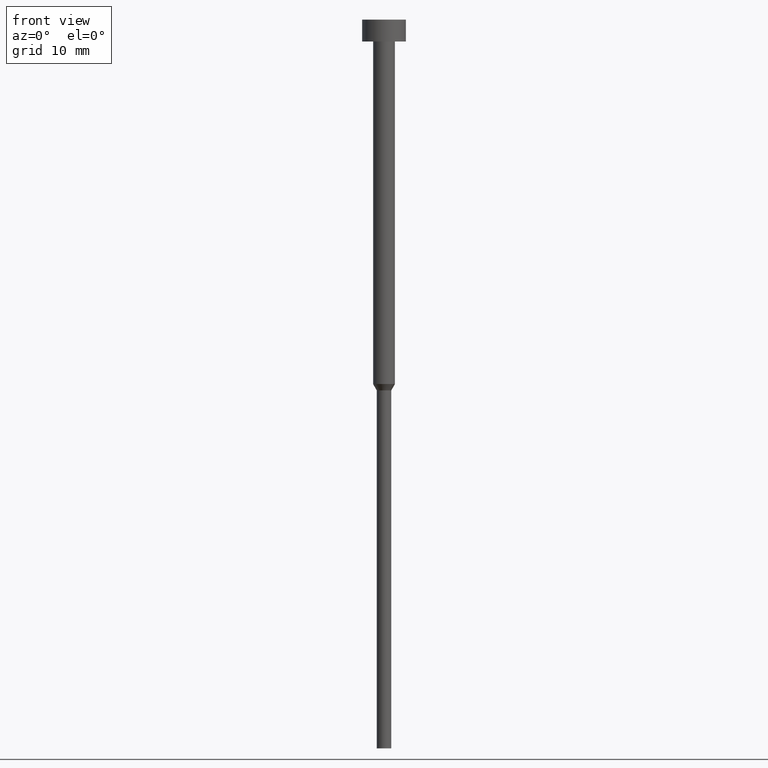
[diagram: clean part render]
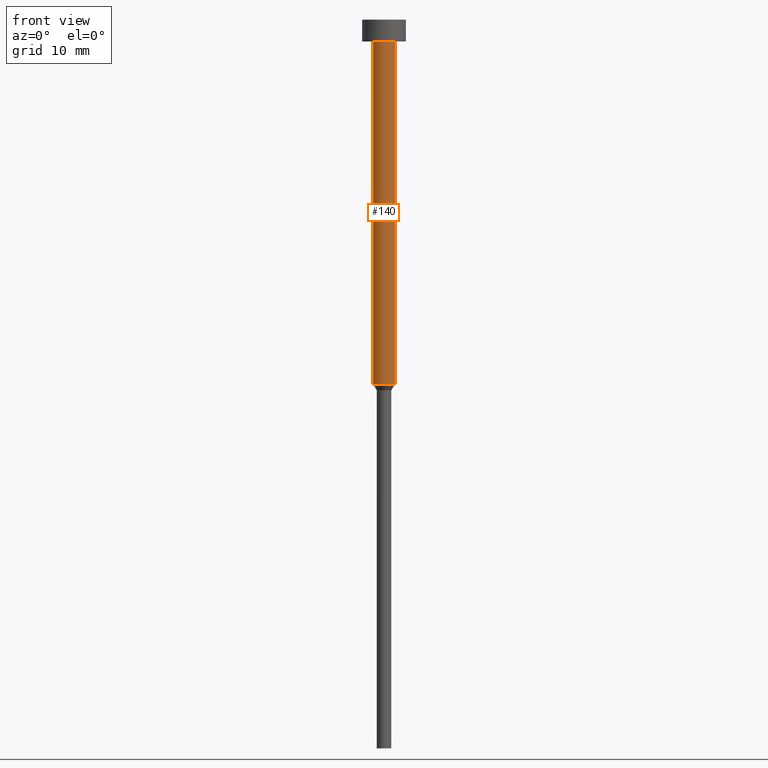
[diagram: same view with one face highlighted and labeled with its STEP entity id]
A machine part, front view. The second image highlights one B-rep face of the part: STEP entity #140.
In plain terms, the highlighted cylindrical surface (edge-blend (fillet) strip) has radius 1.5 mm, axis along (-0, -0, 1).
Its self-contained STEP definition (entity closure, byte-faithful):
#32 = LINE ( 'NONE', #336, #332 ) ;
#34 = VERTEX_POINT ( 'NONE', #176 ) ;
#51 = DIRECTION ( 'NONE',  ( 1.000000000000000000, 0.000000000000000000, 0.000000000000000000 ) ) ;
#53 = EDGE_LOOP ( 'NONE', ( #259, #146, #320, #281 ) ) ;
#79 = DIRECTION ( 'NONE',  ( -0.000000000000000000, -0.000000000000000000, 1.000000000000000000 ) ) ;
#105 = AXIS2_PLACEMENT_3D ( 'NONE', #194, #187, #273 ) ;
#106 = DIRECTION ( 'NONE',  ( -0.000000000000000000, -0.000000000000000000, 1.000000000000000000 ) ) ;
#116 = CIRCLE ( 'NONE', #222, 1.500000000000000000 ) ;
#128 = LINE ( 'NONE', #157, #221 ) ;
#130 = CARTESIAN_POINT ( 'NONE',  ( -1.500000000000000000, 1.836970198721029934E-16, -50.00000000000000000 ) ) ;
#140 = ADVANCED_FACE ( 'NONE', ( #275 ), #244, .T. ) ;
#146 = ORIENTED_EDGE ( 'NONE', *, *, #177, .T. ) ;
#157 = CARTESIAN_POINT ( 'NONE',  ( -1.500000000000000000, 1.836970198721029934E-16, 0.000000000000000000 ) ) ;
#159 = DIRECTION ( 'NONE',  ( 1.000000000000000000, 0.000000000000000000, 0.000000000000000000 ) ) ;
#163 = AXIS2_PLACEMENT_3D ( 'NONE', #321, #79, #51 ) ;
#176 = CARTESIAN_POINT ( 'NONE',  ( -1.500000000000000000, 1.836970198721029934E-16, -3.000000000000000888 ) ) ;
#177 = EDGE_CURVE ( 'NONE', #192, #290, #277, .T. ) ;
#185 = DIRECTION ( 'NONE',  ( -0.000000000000000000, -0.000000000000000000, 1.000000000000000000 ) ) ;
#187 = DIRECTION ( 'NONE',  ( -0.000000000000000000, -0.000000000000000000, 1.000000000000000000 ) ) ;
#192 = VERTEX_POINT ( 'NONE', #130 ) ;
#194 = CARTESIAN_POINT ( 'NONE',  ( 0.000000000000000000, 0.000000000000000000, 0.000000000000000000 ) ) ;
#203 = EDGE_CURVE ( 'NONE', #34, #247, #116, .T. ) ;
#221 = VECTOR ( 'NONE', #106, 1000.000000000000000 ) ;
#222 = AXIS2_PLACEMENT_3D ( 'NONE', #324, #185, #159 ) ;
#244 = CYLINDRICAL_SURFACE ( 'NONE', #105, 1.500000000000000000 ) ;
#246 = CARTESIAN_POINT ( 'NONE',  ( 1.500000000000000000, 0.000000000000000000, -3.000000000000000888 ) ) ;
#247 = VERTEX_POINT ( 'NONE', #246 ) ;
#251 = EDGE_CURVE ( 'NONE', #192, #34, #128, .T. ) ;
#259 = ORIENTED_EDGE ( 'NONE', *, *, #251, .F. ) ;
#273 = DIRECTION ( 'NONE',  ( 1.000000000000000000, 0.000000000000000000, 0.000000000000000000 ) ) ;
#275 = FACE_OUTER_BOUND ( 'NONE', #53, .T. ) ;
#277 = CIRCLE ( 'NONE', #163, 1.500000000000000000 ) ;
#280 = DIRECTION ( 'NONE',  ( -0.000000000000000000, -0.000000000000000000, 1.000000000000000000 ) ) ;
#281 = ORIENTED_EDGE ( 'NONE', *, *, #203, .F. ) ;
#290 = VERTEX_POINT ( 'NONE', #331 ) ;
#310 = EDGE_CURVE ( 'NONE', #290, #247, #32, .T. ) ;
#320 = ORIENTED_EDGE ( 'NONE', *, *, #310, .T. ) ;
#321 = CARTESIAN_POINT ( 'NONE',  ( 0.000000000000000000, 0.000000000000000000, -50.00000000000000000 ) ) ;
#324 = CARTESIAN_POINT ( 'NONE',  ( 0.000000000000000000, 0.000000000000000000, -3.000000000000000888 ) ) ;
#331 = CARTESIAN_POINT ( 'NONE',  ( 1.500000000000000000, 0.000000000000000000, -50.00000000000000000 ) ) ;
#332 = VECTOR ( 'NONE', #280, 1000.000000000000000 ) ;
#336 = CARTESIAN_POINT ( 'NONE',  ( 1.500000000000000000, 0.000000000000000000, 0.000000000000000000 ) ) ;